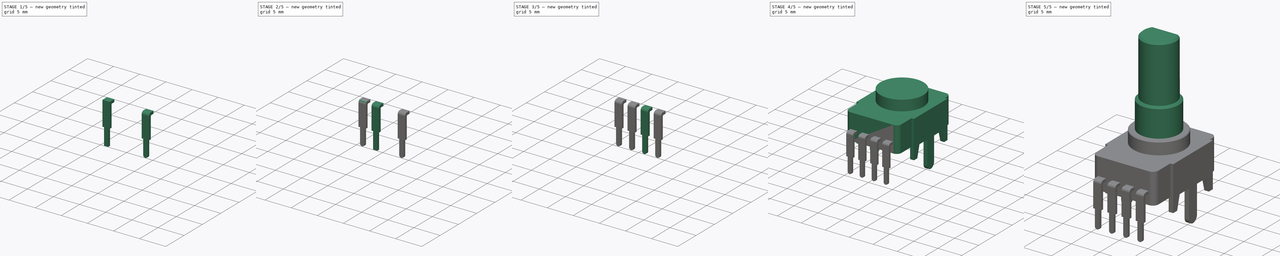
[diagram: build sequence overview — one tinted view per stage of 5, left to right]
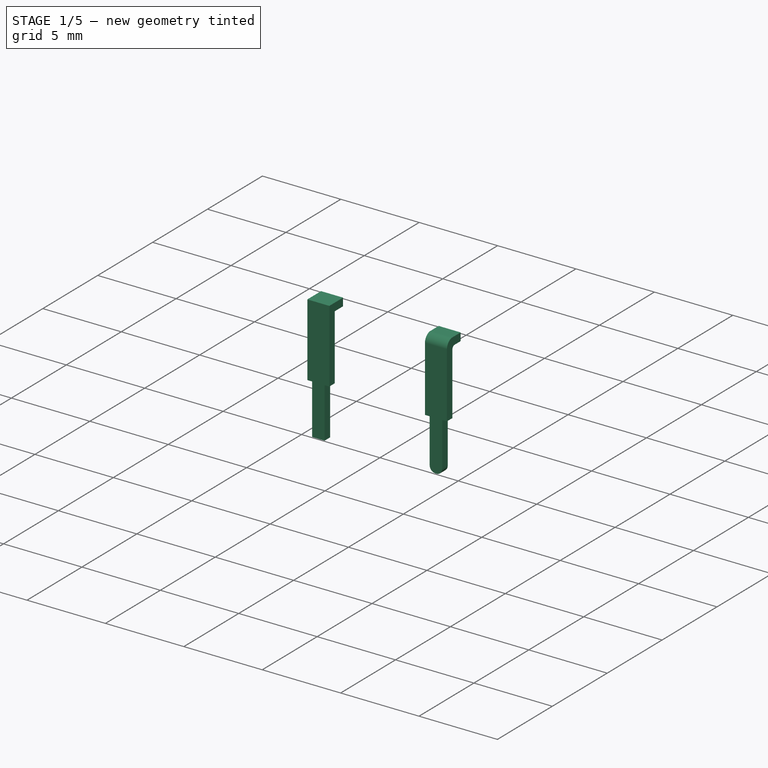
[diagram: stage 1 of 5 — iso view after this stage's code; geometry added in this stage tinted green]
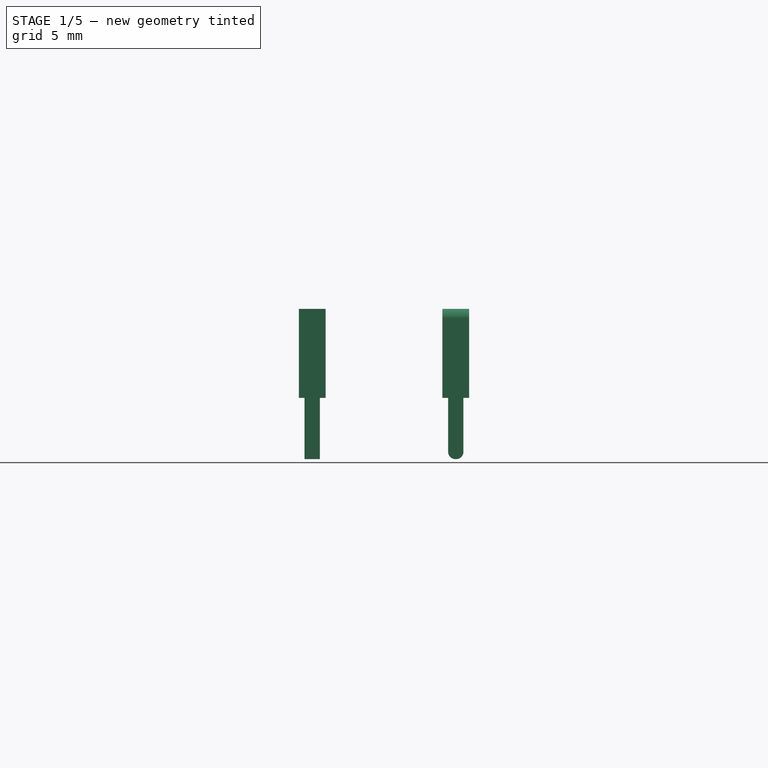
[diagram: stage 1 of 5 — front view after this stage's code; geometry added in this stage tinted green]
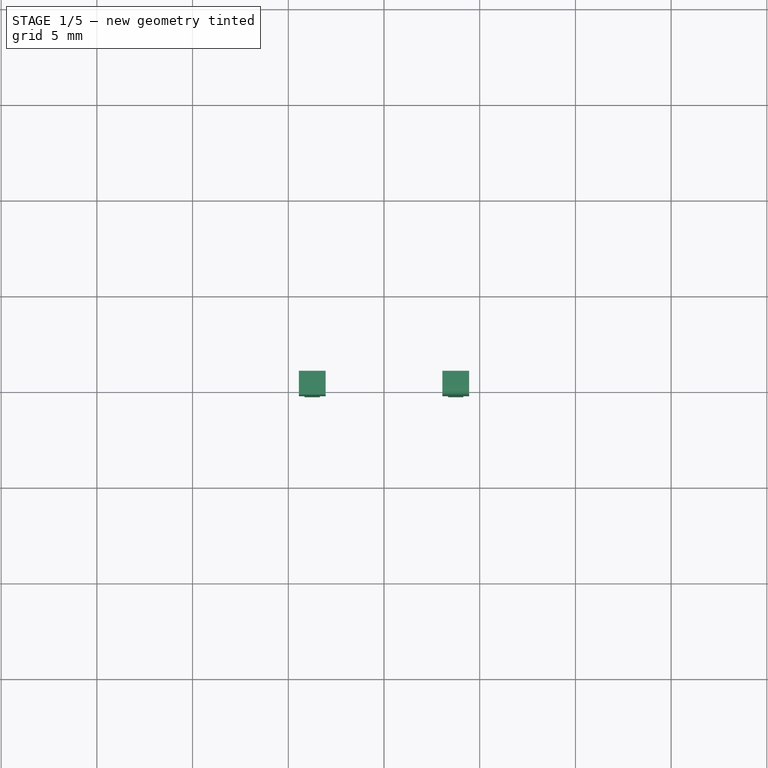
[diagram: stage 1 of 5 — top view after this stage's code; geometry added in this stage tinted green]
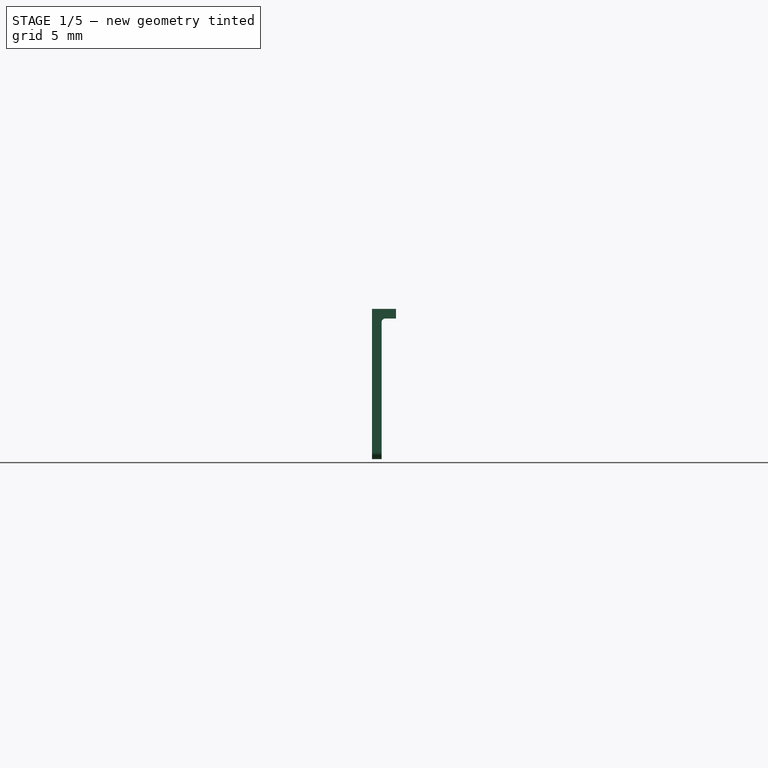
[diagram: stage 1 of 5 — right view after this stage's code; geometry added in this stage tinted green]
FCSTD DOCUMENT  (FreeCAD 0.18R16146 (Git))
Label: RV112FF-40B01
License: All rights reserved
LicenseURL: http://en.wikipedia.org/wiki/All_rights_reserved
objects: Sketcher::SketchObject×15, PartDesign::Pad×14, PartDesign::Fillet×13, PartDesign::Plane×6, PartDesign::Body×5, PartDesign::Chamfer×4, PartDesign::Mirrored×1, PartDesign::Pocket×1
note: 74 computed .brp shape members not serialized (recipe doc carries the construction recipe); baked Part::Feature solids carry a one-line shape summary decoded from their .brp

FEATURE [PartDesign::Body] Body002  label="Beinchen2"
  Group = -> [DatumPlane003,Sketch010,Pad009,Sketch011,Pad008,Fillet006,Fillet004,Fillet005]
  Origin = -> Origin002
  Tip = -> Fillet005
FEATURE [PartDesign::Plane] DatumPlane004
  AttachmentOffset = pos=(0,0,1.25) rot=(0,0,1;0rad)
  Length = 24.2749
  MapMode = 2
  Placement = pos=(-3.75,0,0) rot=(0.57735,0.57735,0.57735;2.0944rad)
  ResizeMode = 0
  Width = 24.0249
FEATURE [Sketcher::SketchObject] Sketch013
  MapMode = 5
  Placement = pos=(-3.75,0,0) rot=(0.57735,0.57735,0.57735;2.0944rad)
  Support = -> [DatumPlane004]
  sketch-geometry (7):
    g0: LineSegment StartX=-9 StartY=2.25 StartZ=0 EndX=-10.25 EndY=2.25 EndZ=0
    g1: LineSegment StartX=-10.25 StartY=2.25 StartZ=0 EndX=-10.25 EndY=-2.4 EndZ=0
    g2: LineSegment StartX=-10.25 StartY=-2.4 StartZ=0 EndX=-9.75 EndY=-2.4 EndZ=0
    g3: LineSegment StartX=-9.75 StartY=-2.4 StartZ=0 EndX=-9.75 EndY=1.75 EndZ=0
    g4: LineSegment StartX=-9.75 StartY=1.75 StartZ=0 EndX=-9 EndY=1.75 EndZ=0
    g5: LineSegment StartX=-9 StartY=1.75 StartZ=0 EndX=-9 EndY=2.25 EndZ=0
    g6: GeomPoint X=-10 Y=2 Z=0
  constraints (19):
    c: Horizontal(g0)
    c: Coincident(g0,g1)
    c: Vertical(g1)
    c: Coincident(g1,g2)
    c: Horizontal(g2)
    c: Coincident(g2,g3)
    c: Vertical(g3)
    c: Coincident(g3,g4)
    c: Horizontal(g4)
    c: Coincident(g4,g5)
    c: Coincident(g5,g0)
    c: Vertical(g5)
    c: Symmetric(g0,g3,g6)
    c: DistanceX(g6,g-1) = 10
    c: DistanceX(g0,g-1) = 9
    c: DistanceX(g2,g2) = 0.5
    c: Equal(g5,g2)
    c: DistanceY(g-1,g6) = 2
    c: DistanceY(g2,g-1) = 2.4
FEATURE [PartDesign::Pad] Pad010
  Length = 1.4
  Length2 = 100
  Midplane = true
  Placement = pos=(-3.75,0,0) rot=(0.57735,0.57735,0.57735;2.0944rad)
  Profile = -> Sketch013
  Type = 0
FEATURE [Sketcher::SketchObject] Sketch012
  ExternalGeometry = -> [Pad010]
  MapMode = 5
  Placement = pos=(-3.75,0,0) rot=(0.57735,0.57735,0.57735;2.0944rad)
  Support = -> [DatumPlane004]
  sketch-geometry (4):
    g0: LineSegment StartX=-10.25 StartY=-2.4 StartZ=0 EndX=-10.25 EndY=-5.6 EndZ=0
    g1: LineSegment StartX=-10.25 StartY=-5.6 StartZ=0 EndX=-9.75 EndY=-5.6 EndZ=0
    g2: LineSegment StartX=-9.75 StartY=-5.6 StartZ=0 EndX=-9.75 EndY=-2.4 EndZ=0
    g3: LineSegment StartX=-9.75 StartY=-2.4 StartZ=0 EndX=-10.25 EndY=-2.4 EndZ=0
  constraints (10):
    c: Coincident(g-4,g0)
    c: Vertical(g0)
    c: Coincident(g0,g1)
    c: Horizontal(g1)
    c: Coincident(g1,g2)
    c: Coincident(g2,g-5)
    c: Coincident(g2,g3)
    c: Coincident(g3,g0)
    c: Equal(g1,g3)
    c: DistanceY(g1,g2) = 3.2
FEATURE [PartDesign::Pad] Pad011
  BaseFeature = -> Pad010
  Length = 0.8
  Length2 = 100
  Midplane = true
  Placement = pos=(-3.75,0,0) rot=(0.57735,0.57735,0.57735;2.0944rad)
  Profile = -> Sketch012
  Type = 0
FEATURE [PartDesign::Body] Body003  label="Beinchen1"
  Group = -> [DatumPlane004,Sketch013,Pad010,Sketch012,Pad011,Fillet009,Fillet007,Fillet008]
  Origin = -> Origin003
  Tip = -> Fillet008
FEATURE [PartDesign::Plane] DatumPlane005
  AttachmentOffset = pos=(0,0,1.25) rot=(0,0,1;0rad)
  Length = 24.2749
  MapMode = 2
  Placement = pos=(3.75,0,0) rot=(0.57735,0.57735,0.57735;2.0944rad)
  ResizeMode = 0
  Width = 24.0249
FEATURE [Sketcher::SketchObject] Sketch015
  MapMode = 5
  Placement = pos=(3.75,0,0) rot=(0.57735,0.57735,0.57735;2.0944rad)
  Support = -> [DatumPlane005]
  sketch-geometry (7):
    g0: LineSegment StartX=-9 StartY=2.25 StartZ=0 EndX=-10.25 EndY=2.25 EndZ=0
    g1: LineSegment StartX=-10.25 StartY=2.25 StartZ=0 EndX=-10.25 EndY=-2.4 EndZ=0
    g2: LineSegment StartX=-10.25 StartY=-2.4 StartZ=0 EndX=-9.75 EndY=-2.4 EndZ=0
    g3: LineSegment StartX=-9.75 StartY=-2.4 StartZ=0 EndX=-9.75 EndY=1.75 EndZ=0
    g4: LineSegment StartX=-9.75 StartY=1.75 StartZ=0 EndX=-9 EndY=1.75 EndZ=0
    g5: LineSegment StartX=-9 StartY=1.75 StartZ=0 EndX=-9 EndY=2.25 EndZ=0
    g6: GeomPoint X=-10 Y=2 Z=0
  constraints (19):
    c: Horizontal(g0)
    c: Coincident(g0,g1)
    c: Vertical(g1)
    c: Coincident(g1,g2)
    c: Horizontal(g2)
    c: Coincident(g2,g3)
    c: Vertical(g3)
    c: Coincident(g3,g4)
    c: Horizontal(g4)
    c: Coincident(g4,g5)
    c: Coincident(g5,g0)
    c: Vertical(g5)
    c: Symmetric(g0,g3,g6)
    c: DistanceX(g6,g-1) = 10
    c: DistanceX(g0,g-1) = 9
    c: DistanceX(g2,g2) = 0.5
    c: Equal(g5,g2)
    c: DistanceY(g-1,g6) = 2
    c: DistanceY(g2,g-1) = 2.4
FEATURE [PartDesign::Pad] Pad013
  Length = 1.4
  Length2 = 100
  Midplane = true
  Placement = pos=(3.75,0,0) rot=(0.57735,0.57735,0.57735;2.0944rad)
  Profile = -> Sketch015
  Type = 0
FEATURE [Sketcher::SketchObject] Sketch014
  ExternalGeometry = -> [Pad013]
  MapMode = 5
  Placement = pos=(3.75,0,0) rot=(0.57735,0.57735,0.57735;2.0944rad)
  Support = -> [DatumPlane005]
  sketch-geometry (4):
    g0: LineSegment StartX=-10.25 StartY=-2.4 StartZ=0 EndX=-10.25 EndY=-5.6 EndZ=0
    g1: LineSegment StartX=-10.25 StartY=-5.6 StartZ=0 EndX=-9.75 EndY=-5.6 EndZ=0
    g2: LineSegment StartX=-9.75 StartY=-5.6 StartZ=0 EndX=-9.75 EndY=-2.4 EndZ=0
    g3: LineSegment StartX=-9.75 StartY=-2.4 StartZ=0 EndX=-10.25 EndY=-2.4 EndZ=0
  constraints (10):
    c: Coincident(g-4,g0)
    c: Vertical(g0)
    c: Coincident(g0,g1)
    c: Horizontal(g1)
    c: Coincident(g1,g2)
    c: Coincident(g2,g-5)
    c: Coincident(g2,g3)
    c: Coincident(g3,g0)
    c: Equal(g1,g3)
    c: DistanceY(g1,g2) = 3.2
FEATURE [PartDesign::Pad] Pad012
  BaseFeature = -> Pad013
  Length = 0.8
  Length2 = 100
  Midplane = true
  Placement = pos=(3.75,0,0) rot=(0.57735,0.57735,0.57735;2.0944rad)
  Profile = -> Sketch014
  Type = 0
FEATURE [PartDesign::Fillet] Fillet010
  Base = -> Pad012 [Edge2]
  BaseFeature = -> Pad012
  Placement = pos=(3.75,0,0) rot=(0.57735,0.57735,0.57735;2.0944rad)
  Radius = 0.5
FEATURE [PartDesign::Fillet] Fillet012
  Base = -> Fillet010 [Edge22]
  BaseFeature = -> Fillet010
  Placement = pos=(3.75,0,0) rot=(0.57735,0.57735,0.57735;2.0944rad)
  Radius = 0.2
FEATURE [PartDesign::Fillet] Fillet011
  Base = -> Fillet012 [Edge35,Edge38]
  BaseFeature = -> Fillet012
  Placement = pos=(3.75,0,0) rot=(0.57735,0.57735,0.57735;2.0944rad)
  Radius = 0.38
FEATURE [PartDesign::Body] Body004  label="Beinchen4"
  Group = -> [DatumPlane005,Sketch015,Pad013,Sketch014,Pad012,Fillet010,Fillet012,Fillet011]
  Origin = -> Origin004
  Tip = -> Fillet011
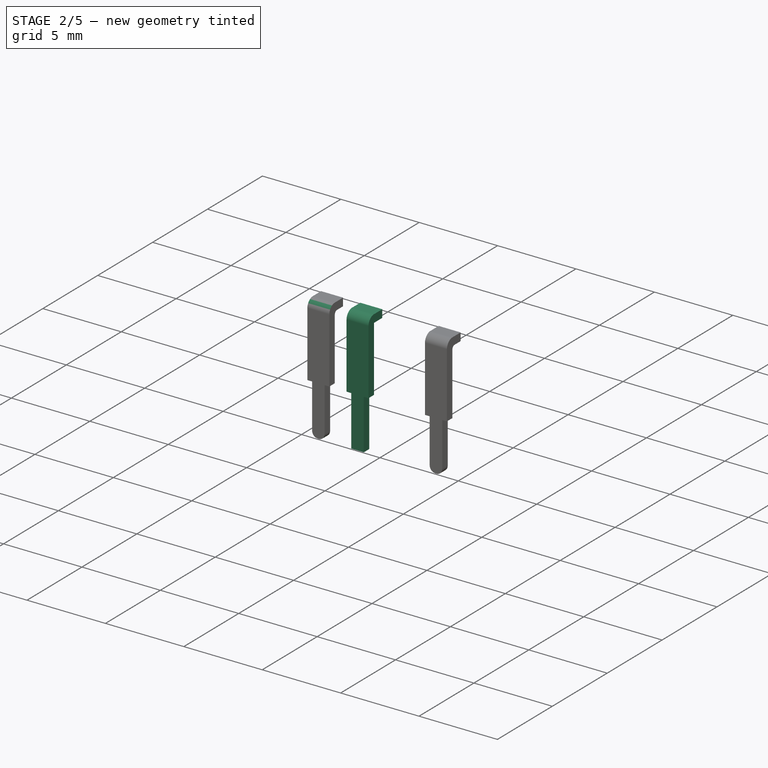
[diagram: stage 2 of 5 — iso view after this stage's code; geometry added in this stage tinted green]
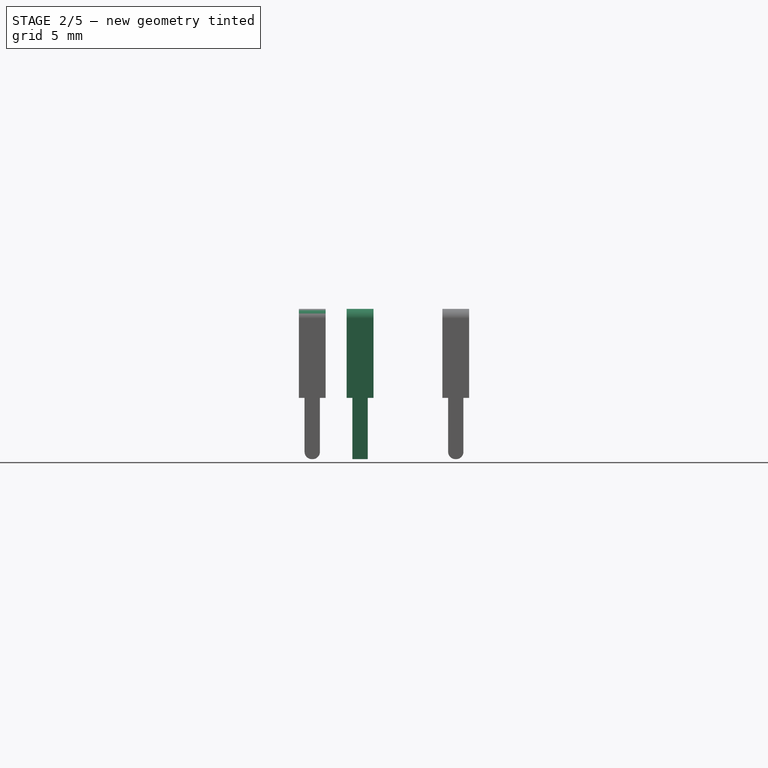
[diagram: stage 2 of 5 — front view after this stage's code; geometry added in this stage tinted green]
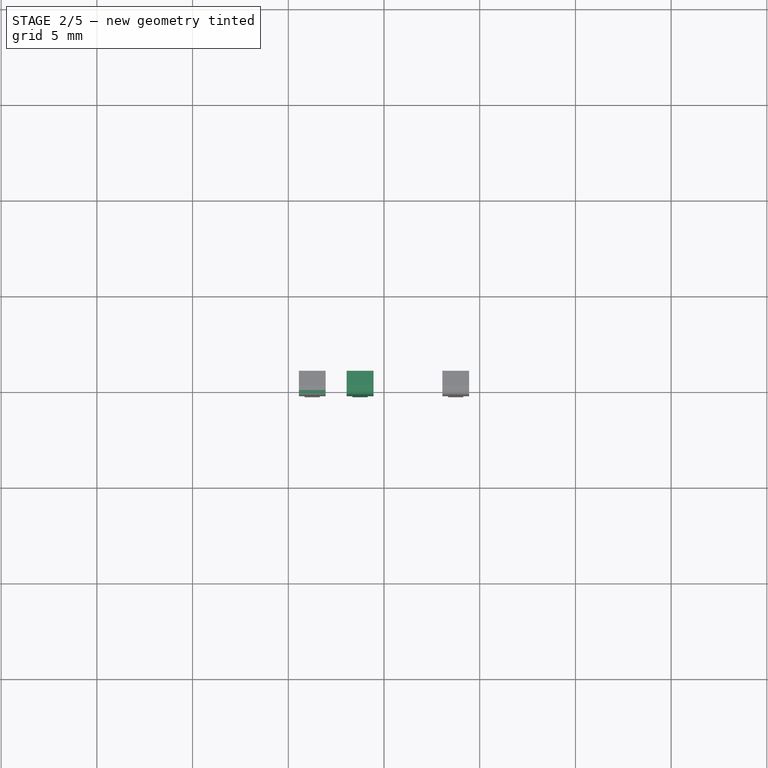
[diagram: stage 2 of 5 — top view after this stage's code; geometry added in this stage tinted green]
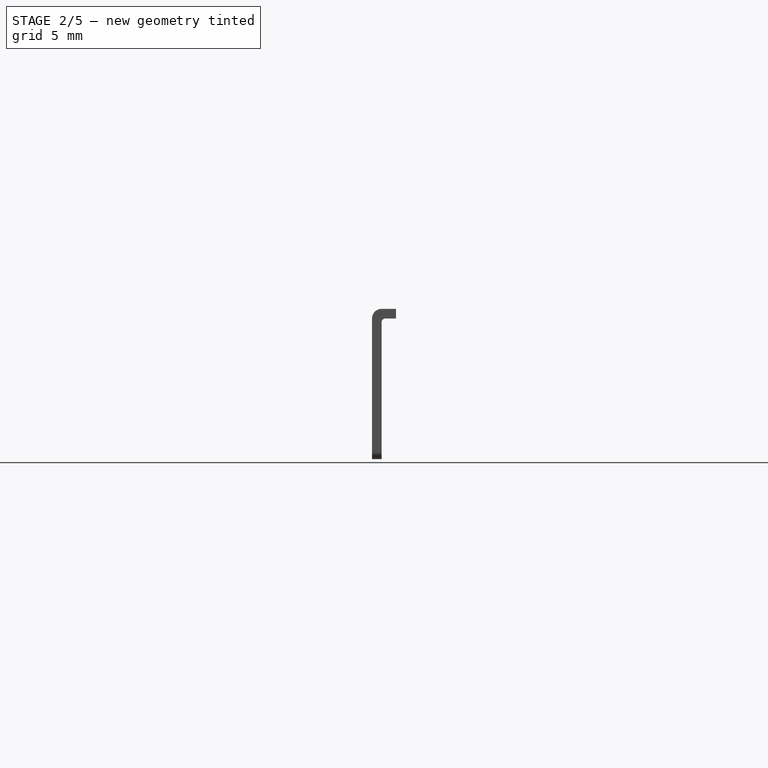
[diagram: stage 2 of 5 — right view after this stage's code; geometry added in this stage tinted green]
FEATURE [PartDesign::Body] Body001  label="Beinchen3"
  Group = -> [DatumPlane002,Sketch007,Pad006,Sketch009,Pad007,Fillet001,Fillet002,Fillet003]
  Origin = -> Origin001
  Tip = -> Fillet003
FEATURE [PartDesign::Plane] DatumPlane003
  AttachmentOffset = pos=(0,0,1.25) rot=(0,0,1;0rad)
  Length = 24.2749
  MapMode = 2
  Placement = pos=(-1.25,0,0) rot=(0.57735,0.57735,0.57735;2.0944rad)
  ResizeMode = 0
  Width = 24.0249
FEATURE [Sketcher::SketchObject] Sketch010
  MapMode = 5
  Placement = pos=(-1.25,0,0) rot=(0.57735,0.57735,0.57735;2.0944rad)
  Support = -> [DatumPlane003]
  sketch-geometry (7):
    g0: LineSegment StartX=-9 StartY=2.25 StartZ=0 EndX=-10.25 EndY=2.25 EndZ=0
    g1: LineSegment StartX=-10.25 StartY=2.25 StartZ=0 EndX=-10.25 EndY=-2.4 EndZ=0
    g2: LineSegment StartX=-10.25 StartY=-2.4 StartZ=0 EndX=-9.75 EndY=-2.4 EndZ=0
    g3: LineSegment StartX=-9.75 StartY=-2.4 StartZ=0 EndX=-9.75 EndY=1.75 EndZ=0
    g4: LineSegment StartX=-9.75 StartY=1.75 StartZ=0 EndX=-9 EndY=1.75 EndZ=0
    g5: LineSegment StartX=-9 StartY=1.75 StartZ=0 EndX=-9 EndY=2.25 EndZ=0
    g6: GeomPoint X=-10 Y=2 Z=0
  constraints (19):
    c: Horizontal(g0)
    c: Coincident(g0,g1)
    c: Vertical(g1)
    c: Coincident(g1,g2)
    c: Horizontal(g2)
    c: Coincident(g2,g3)
    c: Vertical(g3)
    c: Coincident(g3,g4)
    c: Horizontal(g4)
    c: Coincident(g4,g5)
    c: Coincident(g5,g0)
    c: Vertical(g5)
    c: Symmetric(g0,g3,g6)
    c: DistanceX(g6,g-1) = 10
    c: DistanceX(g0,g-1) = 9
    c: DistanceX(g2,g2) = 0.5
    c: Equal(g5,g2)
    c: DistanceY(g-1,g6) = 2
    c: DistanceY(g2,g-1) = 2.4
FEATURE [PartDesign::Pad] Pad009
  Length = 1.4
  Length2 = 100
  Midplane = true
  Placement = pos=(-1.25,0,0) rot=(0.57735,0.57735,0.57735;2.0944rad)
  Profile = -> Sketch010
  Type = 0
FEATURE [Sketcher::SketchObject] Sketch011
  ExternalGeometry = -> [Pad009]
  MapMode = 5
  Placement = pos=(-1.25,0,0) rot=(0.57735,0.57735,0.57735;2.0944rad)
  Support = -> [DatumPlane003]
  sketch-geometry (4):
    g0: LineSegment StartX=-10.25 StartY=-2.4 StartZ=0 EndX=-10.25 EndY=-5.6 EndZ=0
    g1: LineSegment StartX=-10.25 StartY=-5.6 StartZ=0 EndX=-9.75 EndY=-5.6 EndZ=0
    g2: LineSegment StartX=-9.75 StartY=-5.6 StartZ=0 EndX=-9.75 EndY=-2.4 EndZ=0
    g3: LineSegment StartX=-9.75 StartY=-2.4 StartZ=0 EndX=-10.25 EndY=-2.4 EndZ=0
  constraints (10):
    c: Coincident(g-4,g0)
    c: Vertical(g0)
    c: Coincident(g0,g1)
    c: Horizontal(g1)
    c: Coincident(g1,g2)
    c: Coincident(g2,g-5)
    c: Coincident(g2,g3)
    c: Coincident(g3,g0)
    c: Equal(g1,g3)
    c: DistanceY(g1,g2) = 3.2
FEATURE [PartDesign::Pad] Pad008
  BaseFeature = -> Pad009
  Length = 0.8
  Length2 = 100
  Midplane = true
  Placement = pos=(-1.25,0,0) rot=(0.57735,0.57735,0.57735;2.0944rad)
  Profile = -> Sketch011
  Type = 0
FEATURE [PartDesign::Fillet] Fillet006
  Base = -> Pad008 [Edge2]
  BaseFeature = -> Pad008
  Placement = pos=(-1.25,0,0) rot=(0.57735,0.57735,0.57735;2.0944rad)
  Radius = 0.5
FEATURE [PartDesign::Fillet] Fillet009
  Base = -> Pad011 [Edge2]
  BaseFeature = -> Pad011
  Placement = pos=(-3.75,0,0) rot=(0.57735,0.57735,0.57735;2.0944rad)
  Radius = 0.5
FEATURE [PartDesign::Fillet] Fillet007
  Base = -> Fillet009 [Edge22]
  BaseFeature = -> Fillet009
  Placement = pos=(-3.75,0,0) rot=(0.57735,0.57735,0.57735;2.0944rad)
  Radius = 0.2
FEATURE [PartDesign::Fillet] Fillet008
  Base = -> Fillet007 [Edge35,Edge38]
  BaseFeature = -> Fillet007
  Placement = pos=(-3.75,0,0) rot=(0.57735,0.57735,0.57735;2.0944rad)
  Radius = 0.38
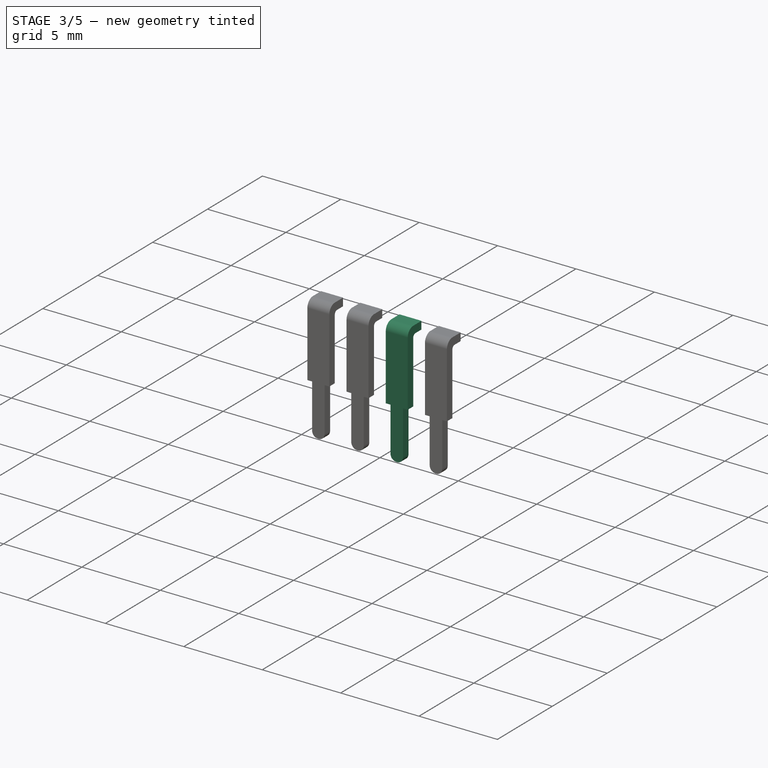
[diagram: stage 3 of 5 — iso view after this stage's code; geometry added in this stage tinted green]
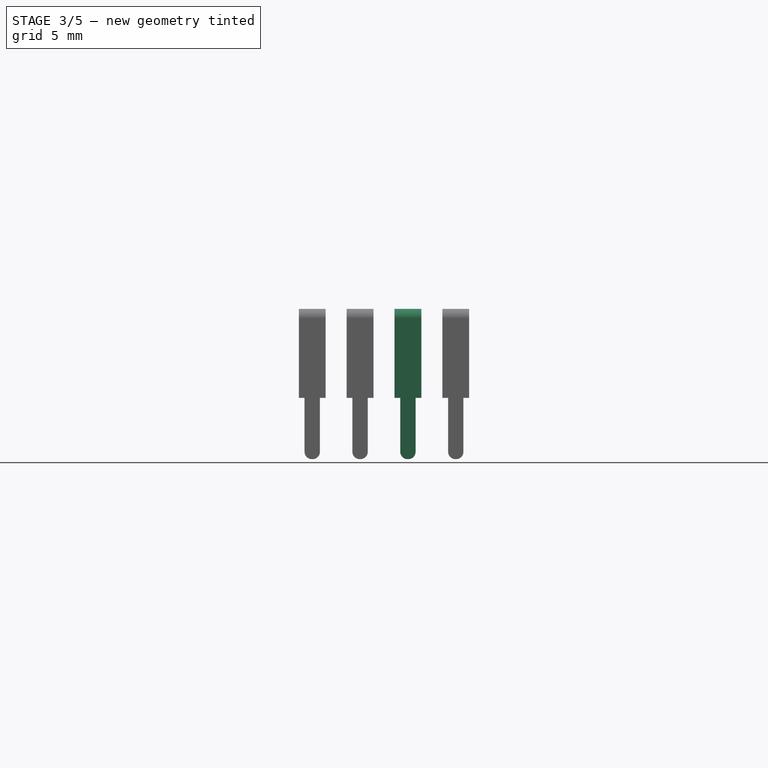
[diagram: stage 3 of 5 — front view after this stage's code; geometry added in this stage tinted green]
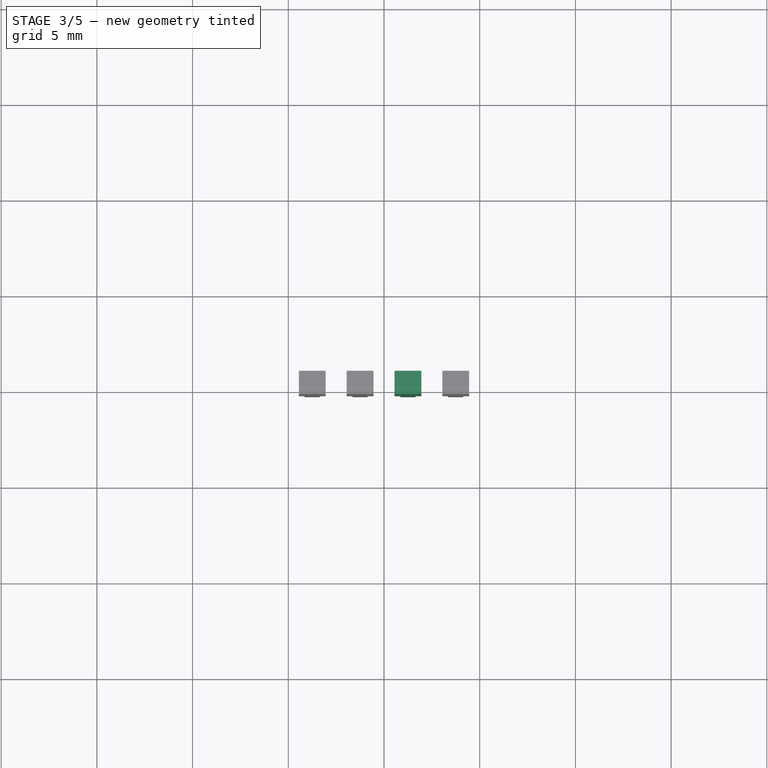
[diagram: stage 3 of 5 — top view after this stage's code; geometry added in this stage tinted green]
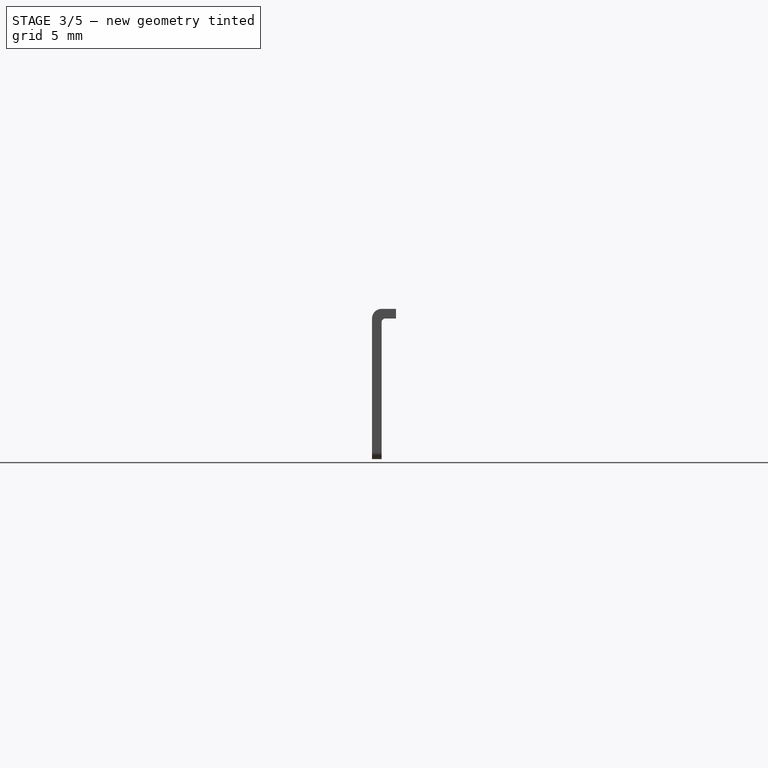
[diagram: stage 3 of 5 — right view after this stage's code; geometry added in this stage tinted green]
FEATURE [PartDesign::Body] Body  label="Gehäuse"
  Group = -> [Sketch,Pad,Fillet,Sketch001,Pad001,Sketch002,Pad002,Mirrored,DatumPlane,Sketch003,Pad003,Sketch004,Pad004,Chamfer,Chamfer001,Sketch005,Pad005,DatumPlane001,Sketch006,Pocket,Chamfer002,Chamfer003]
  Origin = -> Origin
  Tip = -> Chamfer003
FEATURE [PartDesign::Plane] DatumPlane002
  AttachmentOffset = pos=(0,0,1.25) rot=(0,0,1;0rad)
  Length = 24.2749
  MapMode = 2
  Placement = pos=(1.25,-1e-16,1e-16) rot=(0.57735,0.57735,0.57735;2.0944rad)
  ResizeMode = 0
  Width = 24.0249
FEATURE [Sketcher::SketchObject] Sketch007
  MapMode = 5
  Placement = pos=(1.25,-1e-16,1e-16) rot=(0.57735,0.57735,0.57735;2.0944rad)
  Support = -> [DatumPlane002]
  sketch-geometry (7):
    g0: LineSegment StartX=-9 StartY=2.25 StartZ=0 EndX=-10.25 EndY=2.25 EndZ=0
    g1: LineSegment StartX=-10.25 StartY=2.25 StartZ=0 EndX=-10.25 EndY=-2.4 EndZ=0
    g2: LineSegment StartX=-10.25 StartY=-2.4 StartZ=0 EndX=-9.75 EndY=-2.4 EndZ=0
    g3: LineSegment StartX=-9.75 StartY=-2.4 StartZ=0 EndX=-9.75 EndY=1.75 EndZ=0
    g4: LineSegment StartX=-9.75 StartY=1.75 StartZ=0 EndX=-9 EndY=1.75 EndZ=0
    g5: LineSegment StartX=-9 StartY=1.75 StartZ=0 EndX=-9 EndY=2.25 EndZ=0
    g6: GeomPoint X=-10 Y=2 Z=0
  constraints (19):
    c: Horizontal(g0)
    c: Coincident(g0,g1)
    c: Vertical(g1)
    c: Coincident(g1,g2)
    c: Horizontal(g2)
    c: Coincident(g2,g3)
    c: Vertical(g3)
    c: Coincident(g3,g4)
    c: Horizontal(g4)
    c: Coincident(g4,g5)
    c: Coincident(g5,g0)
    c: Vertical(g5)
    c: Symmetric(g0,g3,g6)
    c: DistanceX(g6,g-1) = 10
    c: DistanceX(g0,g-1) = 9
    c: DistanceX(g2,g2) = 0.5
    c: Equal(g5,g2)
    c: DistanceY(g-1,g6) = 2
    c: DistanceY(g2,g-1) = 2.4
FEATURE [PartDesign::Pad] Pad006
  Length = 1.4
  Length2 = 100
  Midplane = true
  Placement = pos=(1.25,-1e-16,1e-16) rot=(0.57735,0.57735,0.57735;2.0944rad)
  Profile = -> Sketch007
  Type = 0
FEATURE [Sketcher::SketchObject] Sketch009
  ExternalGeometry = -> [Pad006]
  MapMode = 5
  Placement = pos=(1.25,-1e-16,1e-16) rot=(0.57735,0.57735,0.57735;2.0944rad)
  Support = -> [DatumPlane002]
  sketch-geometry (4):
    g0: LineSegment StartX=-10.25 StartY=-2.4 StartZ=0 EndX=-10.25 EndY=-5.6 EndZ=0
    g1: LineSegment StartX=-10.25 StartY=-5.6 StartZ=0 EndX=-9.75 EndY=-5.6 EndZ=0
    g2: LineSegment StartX=-9.75 StartY=-5.6 StartZ=0 EndX=-9.75 EndY=-2.4 EndZ=0
    g3: LineSegment StartX=-9.75 StartY=-2.4 StartZ=0 EndX=-10.25 EndY=-2.4 EndZ=0
  constraints (10):
    c: Coincident(g-4,g0)
    c: Vertical(g0)
    c: Coincident(g0,g1)
    c: Horizontal(g1)
    c: Coincident(g1,g2)
    c: Coincident(g2,g-5)
    c: Coincident(g2,g3)
    c: Coincident(g3,g0)
    c: Equal(g1,g3)
    c: DistanceY(g1,g2) = 3.2
FEATURE [PartDesign::Pad] Pad007
  BaseFeature = -> Pad006
  Length = 0.8
  Length2 = 100
  Midplane = true
  Placement = pos=(1.25,-1e-16,1e-16) rot=(0.57735,0.57735,0.57735;2.0944rad)
  Profile = -> Sketch009
  Type = 0
FEATURE [PartDesign::Fillet] Fillet001
  Base = -> Pad007 [Edge2]
  BaseFeature = -> Pad007
  Placement = pos=(1.25,-1e-16,1e-16) rot=(0.57735,0.57735,0.57735;2.0944rad)
  Radius = 0.5
FEATURE [PartDesign::Fillet] Fillet002
  Base = -> Fillet001 [Edge22]
  BaseFeature = -> Fillet001
  Placement = pos=(1.25,-1e-16,1e-16) rot=(0.57735,0.57735,0.57735;2.0944rad)
  Radius = 0.2
FEATURE [PartDesign::Fillet] Fillet003
  Base = -> Fillet002 [Edge35,Edge38]
  BaseFeature = -> Fillet002
  Placement = pos=(1.25,-1e-16,1e-16) rot=(0.57735,0.57735,0.57735;2.0944rad)
  Radius = 0.38
FEATURE [PartDesign::Fillet] Fillet004
  Base = -> Fillet006 [Edge22]
  BaseFeature = -> Fillet006
  Placement = pos=(-1.25,0,0) rot=(0.57735,0.57735,0.57735;2.0944rad)
  Radius = 0.2
FEATURE [PartDesign::Fillet] Fillet005
  Base = -> Fillet004 [Edge35,Edge38]
  BaseFeature = -> Fillet004
  Placement = pos=(-1.25,0,0) rot=(0.57735,0.57735,0.57735;2.0944rad)
  Radius = 0.38
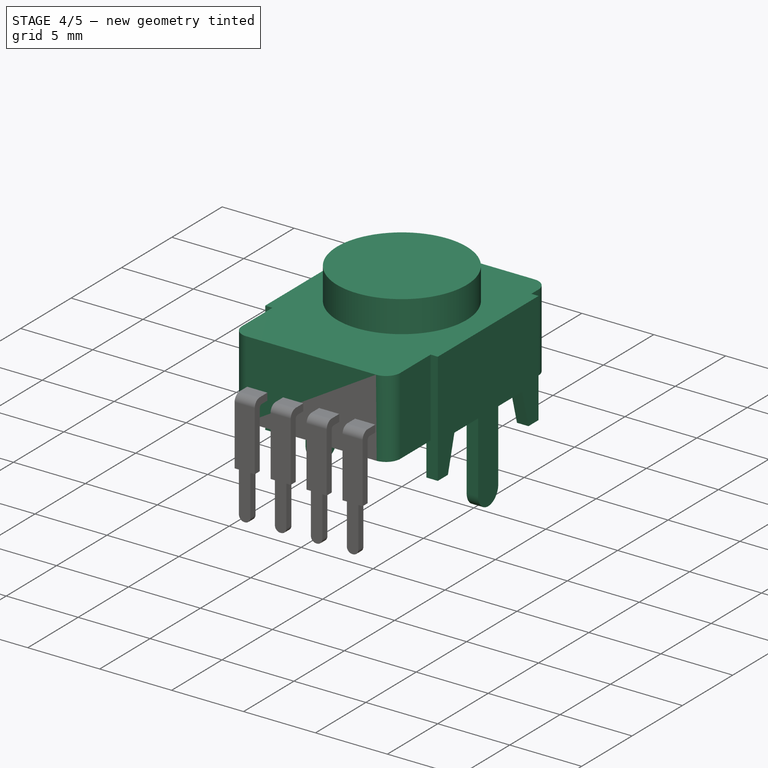
[diagram: stage 4 of 5 — iso view after this stage's code; geometry added in this stage tinted green]
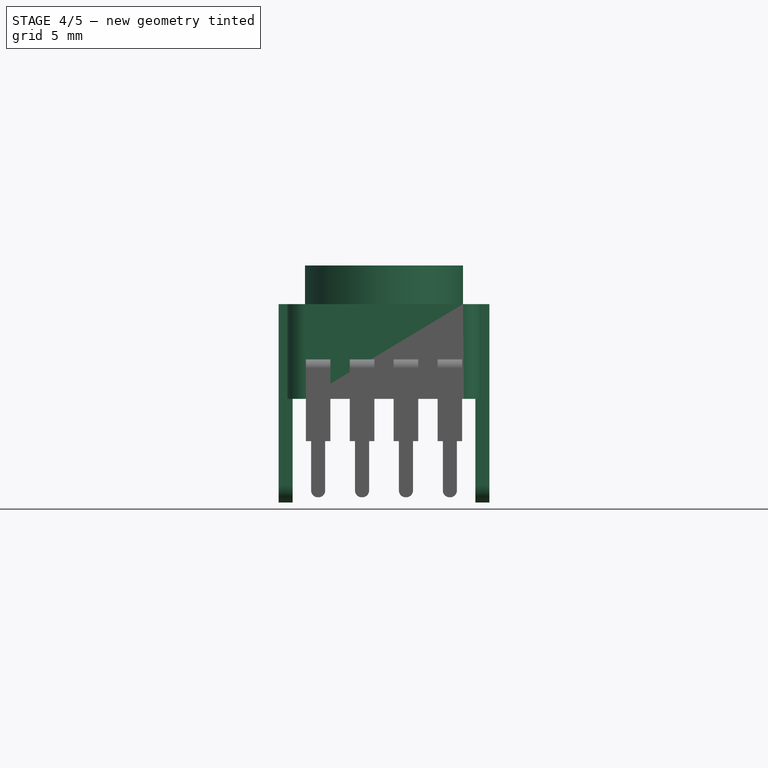
[diagram: stage 4 of 5 — front view after this stage's code; geometry added in this stage tinted green]
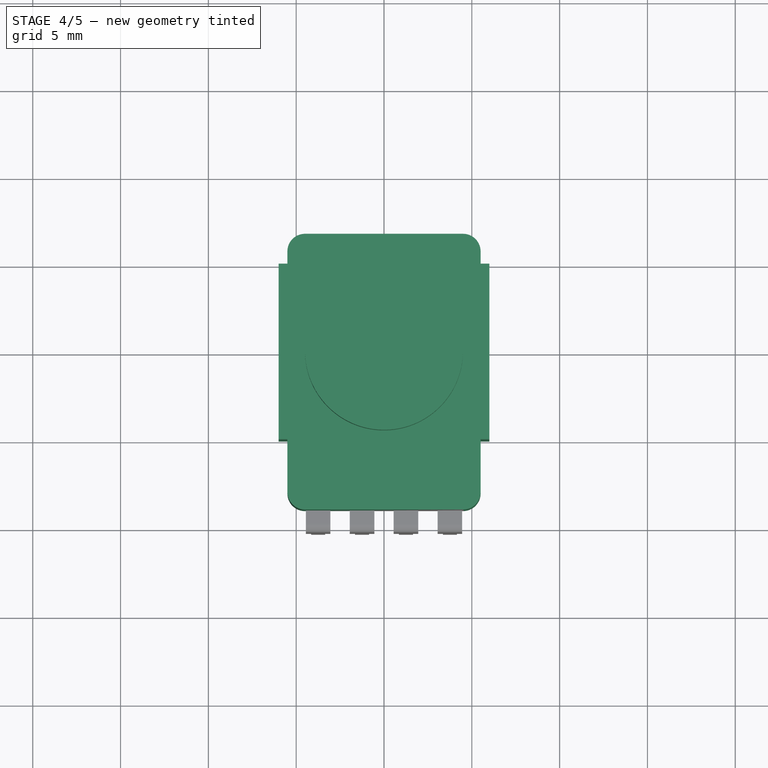
[diagram: stage 4 of 5 — top view after this stage's code; geometry added in this stage tinted green]
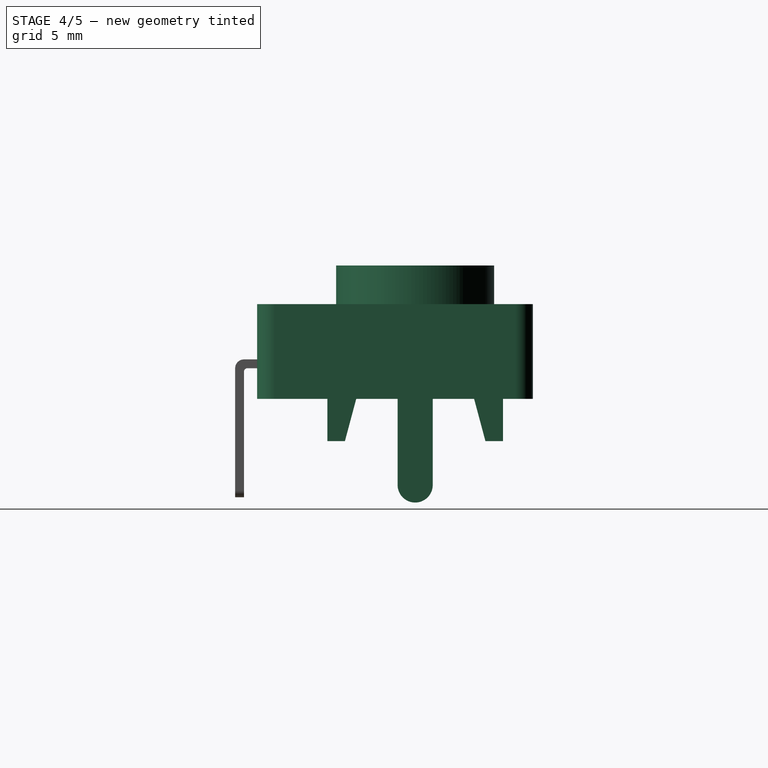
[diagram: stage 4 of 5 — right view after this stage's code; geometry added in this stage tinted green]
FEATURE [Sketcher::SketchObject] Sketch  label="Grundriss"
  MapMode = 5
  Support = -> [XY_Plane]
  sketch-geometry (12):
    g0: LineSegment StartX=-5.5 StartY=6.7 StartZ=0 EndX=5.5 EndY=6.7 EndZ=0
    g1: LineSegment StartX=5.5 StartY=6.7 StartZ=0 EndX=5.5 EndY=5 EndZ=0
    g2: LineSegment StartX=5.5 StartY=5 StartZ=0 EndX=6 EndY=5 EndZ=0
    g3: LineSegment StartX=6 StartY=5 StartZ=0 EndX=6 EndY=-5 EndZ=0
    g4: LineSegment StartX=6 StartY=-5 StartZ=0 EndX=5.5 EndY=-5 EndZ=0
    g5: LineSegment StartX=5.5 StartY=-5 StartZ=0 EndX=5.5 EndY=-9 EndZ=0
    g6: LineSegment StartX=5.5 StartY=-9 StartZ=0 EndX=-5.5 EndY=-9 EndZ=0
    g7: LineSegment StartX=-5.5 StartY=-9 StartZ=0 EndX=-5.5 EndY=-5 EndZ=0
    g8: LineSegment StartX=-5.5 StartY=-5 StartZ=0 EndX=-6 EndY=-5 EndZ=0
    g9: LineSegment StartX=-6 StartY=-5 StartZ=0 EndX=-6 EndY=5 EndZ=0
    g10: LineSegment StartX=-6 StartY=5 StartZ=0 EndX=-5.5 EndY=5 EndZ=0
    g11: LineSegment StartX=-5.5 StartY=6.7 StartZ=0 EndX=-5.5 EndY=5 EndZ=0
  constraints (35):
    c: Horizontal(g0)
    c: Coincident(g0,g1)
    c: Vertical(g1)
    c: Coincident(g1,g2)
    c: Horizontal(g2)
    c: Coincident(g2,g3)
    c: Vertical(g3)
    c: Coincident(g3,g4)
    c: Horizontal(g4)
    c: Coincident(g4,g5)
    c: Vertical(g5)
    c: Coincident(g5,g6)
    c: Horizontal(g6)
    c: Coincident(g6,g7)
    c: Vertical(g7)
    c: Coincident(g7,g8)
    c: Horizontal(g8)
    c: Coincident(g8,g9)
    c: Vertical(g9)
    c: Coincident(g9,g10)
    c: Horizontal(g10)
    c: Equal(g3,g9)
    c: Equal(g0,g6)
    c: Equal(g10,g8)
    c: Equal(g2,g4)
    c: Equal(g2,g10)
    c: Coincident(g0,g11)
    c: Coincident(g11,g10)
    c: DistanceX(g0,g0) = 11
    c: DistanceX(g9,g2) = 12
    c: DistanceY(g5,g-1) = 9
    c: DistanceY(g-1,g0) = 6.7
    c: DistanceY(g3,g2) = 10
    c: Equal(g5,g7)
    c: Symmetric(g2,g8,g-1)
FEATURE [PartDesign::Pad] Pad
  Length = 5.4
  Length2 = 100
  Profile = -> Sketch
  Type = 0
FEATURE [PartDesign::Fillet] Fillet
  Base = -> Pad [Edge2,Edge1,Edge20,Edge17]
  BaseFeature = -> Pad
  Radius = 1
FEATURE [Sketcher::SketchObject] Sketch001  label="Füße001"
  ExternalGeometry = -> [Fillet]
  MapMode = 5
  Placement = pos=(-6,0,0) rot=(0.57735,-0.57735,-0.57735;2.0944rad)
  Support = -> [Fillet]
  sketch-geometry (8):
    g0: LineSegment StartX=-5 StartY=0 StartZ=0 EndX=-5 EndY=-2.4 EndZ=0
    g1: LineSegment StartX=-5 StartY=-2.4 StartZ=0 EndX=-4 EndY=-2.4 EndZ=0
    g2: LineSegment StartX=-4 StartY=-2.4 StartZ=0 EndX=-3.35692 EndY=0 EndZ=0
    g3: LineSegment StartX=-3.35692 StartY=0 StartZ=0 EndX=-5 EndY=0 EndZ=0
    g4: LineSegment StartX=5 StartY=0 StartZ=0 EndX=5 EndY=-2.4 EndZ=0
    g5: LineSegment StartX=5 StartY=-2.4 StartZ=0 EndX=4 EndY=-2.4 EndZ=0
    g6: LineSegment StartX=4 StartY=-2.4 StartZ=0 EndX=3.35692 EndY=0 EndZ=0
    g7: LineSegment StartX=3.35692 StartY=0 StartZ=0 EndX=5 EndY=0 EndZ=0
  constraints (21):
    c: Coincident(g-5,g0)
    c: Vertical(g0)
    c: Coincident(g0,g1)
    c: Horizontal(g1)
    c: Coincident(g1,g2)
    c: Coincident(g2,g3)
    c: Coincident(g3,g0)
    c: Horizontal(g3)
    c: Coincident(g-5,g4)
    c: Vertical(g4)
    c: Coincident(g4,g5)
    c: Horizontal(g5)
    c: Coincident(g5,g6)
    c: Coincident(g6,g7)
    c: Coincident(g7,g4)
    c: Angle(g5,g6) = 1.8326
    c: Equal(g5,g1)
    c: Equal(g4,g0)
    c: DistanceY(g4,g-6) = 7.8
    c: Symmetric(g2,g6,g-1)
    c: DistanceX(g1,g5) = 8
FEATURE [PartDesign::Pad] Pad001  label="Füße"
  BaseFeature = -> Fillet
  Length = 0.8
  Length2 = 100
  Profile = -> Sketch001
  Reversed = true
  Type = 0
FEATURE [Sketcher::SketchObject] Sketch002  label="Lasche"
  ExternalGeometry = -> [Pad001]
  MapMode = 5
  Placement = pos=(-6,0,0) rot=(0.57735,-0.57735,-0.57735;2.0944rad)
  Support = -> [Pad001]
  sketch-geometry (4):
    g0: LineSegment StartX=-1 StartY=5.4 StartZ=0 EndX=-1 EndY=-4.90001 EndZ=0
    g1: LineSegment StartX=1 StartY=5.4 StartZ=0 EndX=1 EndY=-4.9 EndZ=0
    g2: ArcOfCircle CenterX=-4.06115e-11 CenterY=-4.9 CenterZ=0 NormalX=0 NormalY=0 NormalZ=1 AngleXU=0 Radius=1 StartAngle=3.1416 EndAngle=6.28319
    g3: LineSegment StartX=-1 StartY=5.4 StartZ=0 EndX=1 EndY=5.4 EndZ=0
  constraints (11):
    c: PointOnObject(g0,g-3)
    c: Vertical(g0)
    c: Vertical(g1)
    c: Coincident(g2,g0)
    c: Coincident(g2,g1)
    c: DistanceX(g0,g1) = 2
    c: Radius(g2) = 1
    c: DistanceY(g1,g-5) = 2.5
    c: Coincident(g0,g3)
    c: Coincident(g3,g1)
    c: Symmetric(g0,g1,g-2)
FEATURE [PartDesign::Pad] Pad002  label="Lasche001"
  BaseFeature = -> Pad001
  Length = 0.8
  Length2 = 100
  Profile = -> Sketch002
  Reversed = true
  Type = 0
FEATURE [PartDesign::Mirrored] Mirrored
  BaseFeature = -> Pad002
  MirrorPlane = -> YZ_Plane
  Originals = -> [Pad001,Pad002]
FEATURE [PartDesign::Plane] DatumPlane
  AttachmentOffset = pos=(0,0,1.25) rot=(0,0,1;0rad)
  Length = 25.1069
  MapMode = 2
  Placement = pos=(1.25,-1e-16,1e-16) rot=(0.57735,0.57735,0.57735;2.0944rad)
  ResizeMode = 0
  Width = 37.7069
FEATURE [Sketcher::SketchObject] Sketch003
  MapMode = 5
  Placement = pos=(0,0,5.4) rot=(0,0,1;0rad)
  Support = -> [Mirrored]
  sketch-geometry (1):
    g0: Circle CenterX=0 CenterY=0 CenterZ=0 NormalX=0 NormalY=0 NormalZ=1 AngleXU=0 Radius=4.5
  constraints (2):
    c: Coincident(g0,g-1)
    c: Diameter(g0) = 9
FEATURE [PartDesign::Pad] Pad003  label="Zylinder"
  BaseFeature = -> Mirrored
  Length = 2.2
  Length2 = 100
  Profile = -> Sketch003
  Type = 0
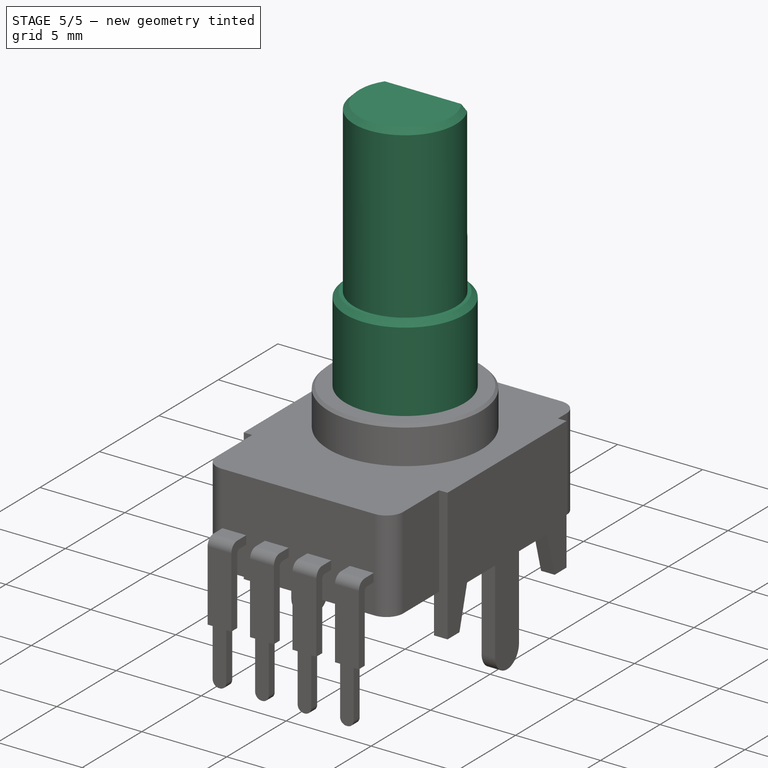
[diagram: stage 5 of 5 — iso view after this stage's code; geometry added in this stage tinted green]
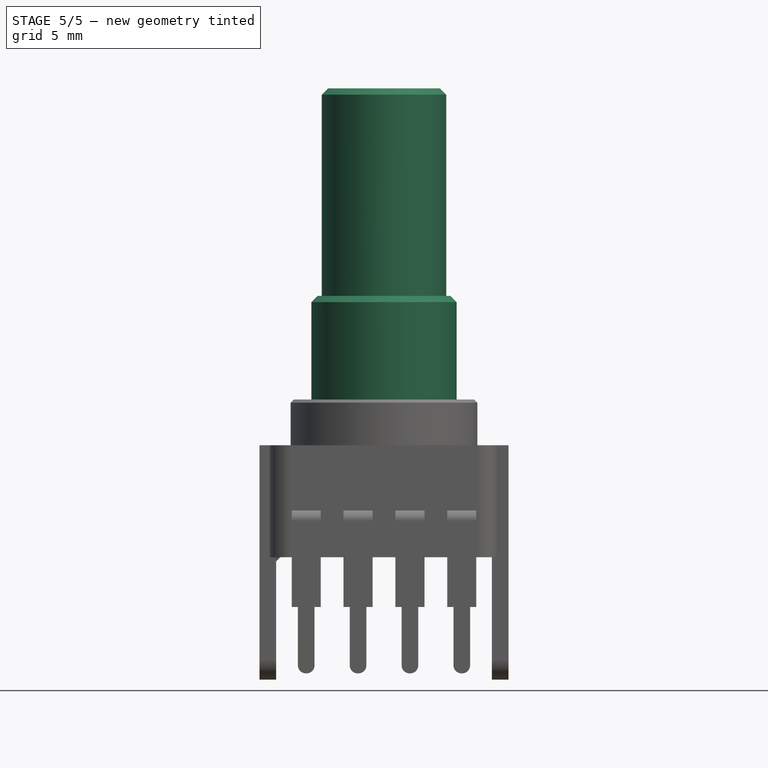
[diagram: stage 5 of 5 — front view after this stage's code; geometry added in this stage tinted green]
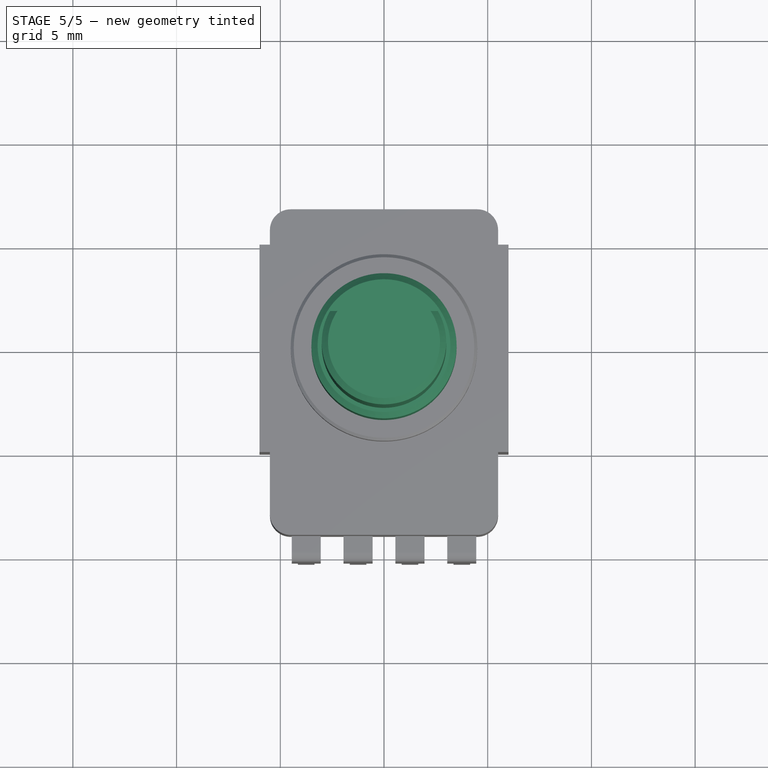
[diagram: stage 5 of 5 — top view after this stage's code; geometry added in this stage tinted green]
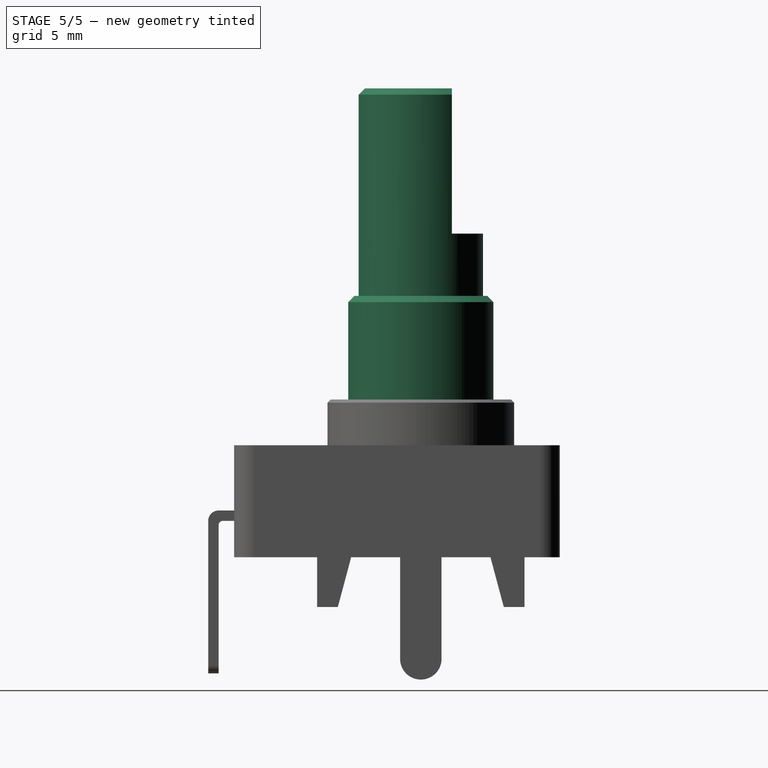
[diagram: stage 5 of 5 — right view after this stage's code; geometry added in this stage tinted green]
FEATURE [Sketcher::SketchObject] Sketch004
  MapMode = 5
  Placement = pos=(0,0,7.6) rot=(0,0,1;0rad)
  Support = -> [Pad003]
  sketch-geometry (1):
    g0: Circle CenterX=0 CenterY=0 CenterZ=0 NormalX=0 NormalY=0 NormalZ=1 AngleXU=0 Radius=3.5
  constraints (2):
    c: Coincident(g0,g-1)
    c: Diameter(g0) = 7
FEATURE [PartDesign::Pad] Pad004  label="Gewinde"
  BaseFeature = -> Pad003
  Length = 5
  Length2 = 100
  Profile = -> Sketch004
  Type = 0
FEATURE [PartDesign::Chamfer] Chamfer
  Base = -> Pad004 [Edge142]
  BaseFeature = -> Pad004
  Size = 0.3
FEATURE [PartDesign::Chamfer] Chamfer001
  Base = -> Chamfer [Edge6]
  BaseFeature = -> Chamfer
  Size = 0.15
FEATURE [Sketcher::SketchObject] Sketch005
  MapMode = 5
  Placement = pos=(0,0,12.6) rot=(0,0,1;0rad)
  Support = -> [Chamfer001]
  sketch-geometry (1):
    g0: Circle CenterX=0 CenterY=0 CenterZ=0 NormalX=0 NormalY=0 NormalZ=1 AngleXU=0 Radius=3
  constraints (2):
    c: Coincident(g0,g-1)
    c: Diameter(g0) = 6
FEATURE [PartDesign::Pad] Pad005
  BaseFeature = -> Chamfer001
  Length = 10
  Length2 = 100
  Profile = -> Sketch005
  Type = 0
FEATURE [PartDesign::Plane] DatumPlane001
  AttachmentOffset = pos=(0,0,-1.5) rot=(0,0,1;0rad)
  Length = 25.1069
  MapMode = 5
  Placement = pos=(0,1.5,3e-16) rot=(1,0,0;1.5708rad)
  ResizeMode = 0
  Support = -> [XZ_Plane]
  Width = 37.7069
FEATURE [Sketcher::SketchObject] Sketch006
  ExternalGeometry = -> [Pad005]
  MapMode = 5
  Placement = pos=(0,1.5,3e-16) rot=(1,0,0;1.5708rad)
  Support = -> [DatumPlane001]
  sketch-geometry (4):
    g0: LineSegment StartX=3.49 StartY=22.6 StartZ=0 EndX=-3.49 EndY=22.6 EndZ=0
    g1: LineSegment StartX=-3.49 StartY=22.6 StartZ=0 EndX=-3.49 EndY=15.6 EndZ=0
    g2: LineSegment StartX=-3.49 StartY=15.6 StartZ=0 EndX=3.49 EndY=15.6 EndZ=0
    g3: LineSegment StartX=3.49 StartY=15.6 StartZ=0 EndX=3.49 EndY=22.6 EndZ=0
  constraints (11):
    c: Coincident(g0,g1)
    c: Coincident(g1,g2)
    c: Coincident(g2,g3)
    c: Coincident(g3,g0)
    c: Horizontal(g2)
    c: Vertical(g1)
    c: Vertical(g3)
    c: DistanceX(g0,g0) = 6.98
    c: DistanceY(g3,g3) = 7
    c: Symmetric(g0,g0,g-2)
    c: DistanceY(g-3,g0) = 17.2
FEATURE [PartDesign::Pocket] Pocket
  BaseFeature = -> Pad005
  Length = 5
  Length2 = 100
  Profile = -> Sketch006
  Type = 0
FEATURE [PartDesign::Chamfer] Chamfer002
  Base = -> Pocket [Edge87]
  BaseFeature = -> Pocket
  Size = 0.2
FEATURE [PartDesign::Chamfer] Chamfer003
  Base = -> Chamfer002 [Edge154]
  BaseFeature = -> Chamfer002
  Size = 0.3
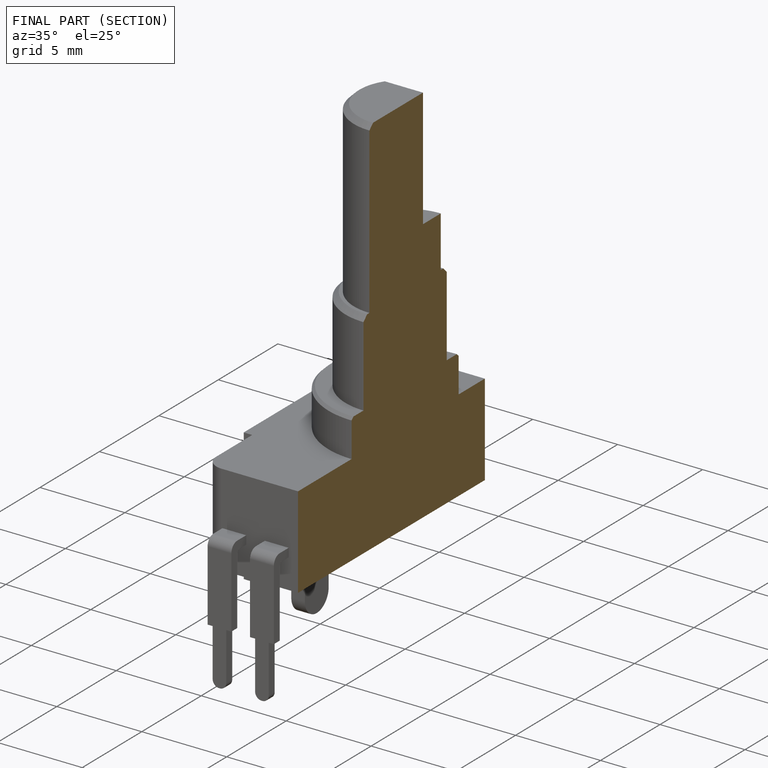
[diagram: finished part — half-section view (interior)]
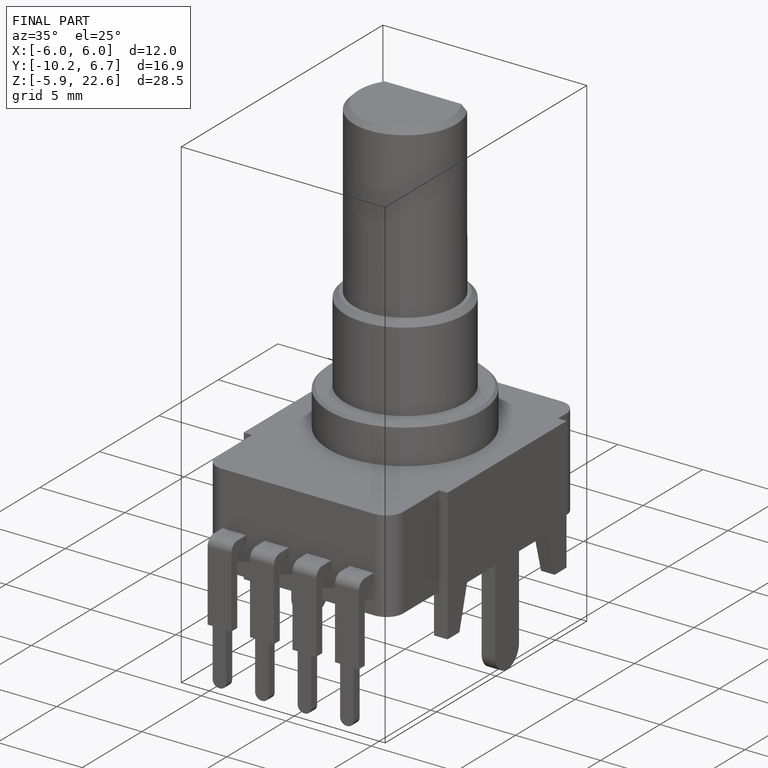
[diagram: finished part — iso view with bounding-box wireframe]
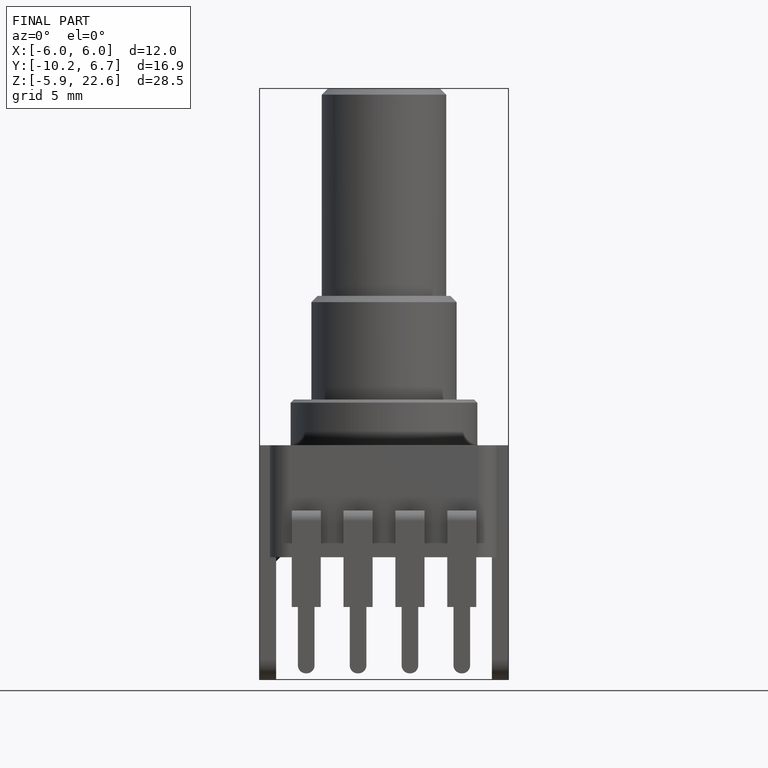
[diagram: finished part — front view with bounding-box wireframe]
